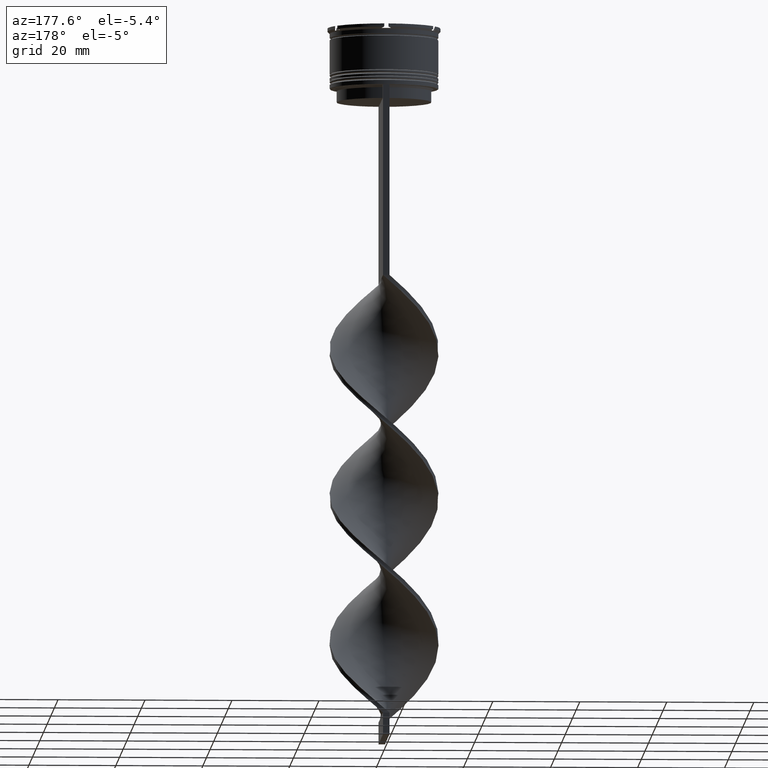
[diagram: clean part render]
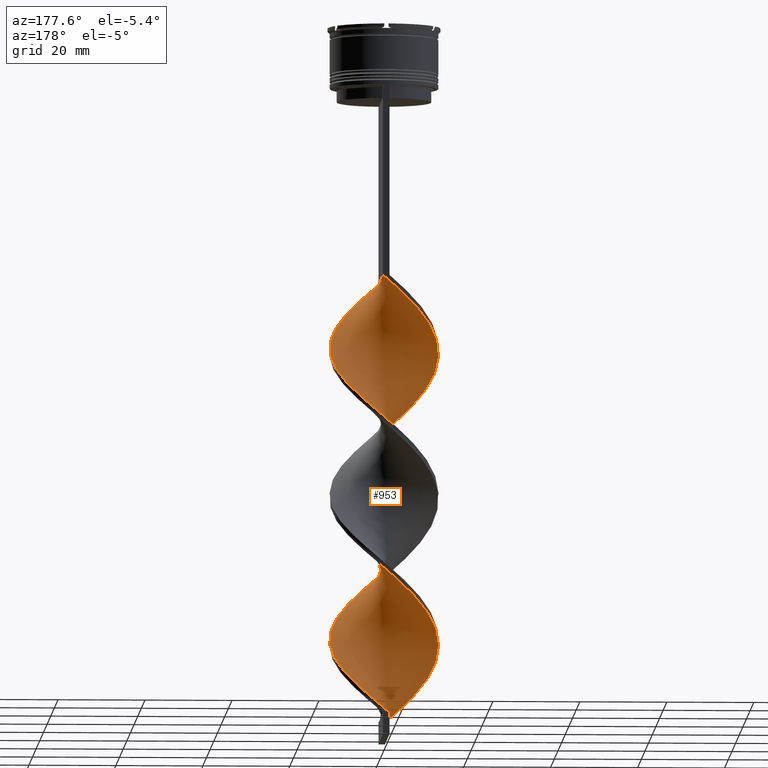
[diagram: same view with one face highlighted and labeled with its STEP entity id]
A machine part, auxiliary view. The second image highlights one B-rep face of the part: STEP entity #953.
In plain terms, the highlighted face is a freeform B-spline surface patch.
Its self-contained STEP definition (entity closure, byte-faithful):
#3 = CARTESIAN_POINT ( 'NONE',  ( -12.50992003955415832, -0.5607143693194613920, -143.2888888888889198 ) ) ;
#12 = CARTESIAN_POINT ( 'NONE',  ( 0.7500000000000002220, -12.50000000000000000, -125.3333333333333570 ) ) ;
#20 = CARTESIAN_POINT ( 'NONE',  ( 12.13740119476139867, -3.350863215071115953, -106.2555555555555742 ) ) ;
#35 = CARTESIAN_POINT ( 'NONE',  ( 2.063802940820956167, -12.42117182355074334, -126.4555555555555628 ) ) ;
#41 = CARTESIAN_POINT ( 'NONE',  ( 3.166767928522320474, 12.18672937812252322, -88.29999999999998295 ) ) ;
#45 = CARTESIAN_POINT ( 'NONE',  ( 7.954078399437128688, 9.671873490467486789, -118.6000000000000085 ) ) ;
#52 = CARTESIAN_POINT ( 'NONE',  ( 9.791158273236570508, -7.806773960377682009, -66.97777777777777430 ) ) ;
#58 = CARTESIAN_POINT ( 'NONE',  ( 9.725148873555948370, 7.997891686931350108, -148.8999999999999773 ) ) ;
#63 = CARTESIAN_POINT ( 'NONE',  ( -0.7499999999999986677, 12.50000000000000000, -159.0000000000000000 ) ) ;
#65 = CARTESIAN_POINT ( 'NONE',  ( -6.937523532635175627, -10.50788081788355832, -86.05555555555557135 ) ) ;
#75 = CARTESIAN_POINT ( 'NONE',  ( 5.631329961908789983, 11.26201202755619946, -153.3888888888889142 ) ) ;
#78 = CARTESIAN_POINT ( 'NONE',  ( -6.937523532635174739, -10.50788081788355832, -153.3888888888889142 ) ) ;
#97 = CARTESIAN_POINT ( 'NONE',  ( -6.740552907874707067, -10.55355136890619860, -118.6000000000000085 ) ) ;
#115 = CARTESIAN_POINT ( 'NONE',  ( 9.791158273236570508, -7.806773960377682009, -134.3111111111111313 ) ) ;
#172 = CARTESIAN_POINT ( 'NONE',  ( -11.17548622105502254, 5.801146418745307898, -137.6777777777777487 ) ) ;
#175 = ORIENTED_EDGE ( 'NONE', *, *, #1825, .F. ) ;
#194 = CARTESIAN_POINT ( 'NONE',  ( -5.769367131679456584, -11.11426573822565977, -154.5111111111111200 ) ) ;
#204 = CARTESIAN_POINT ( 'NONE',  ( 8.787462363698287149, 8.921491198593770378, -150.0222222222222115 ) ) ;
#205 = CARTESIAN_POINT ( 'NONE',  ( -10.45031754730548279, 6.899519052838331667, -69.22222222222222854 ) ) ;
#219 = CARTESIAN_POINT ( 'NONE',  ( 12.45098658456436169, 1.875559948311554370, -110.7444444444444542 ) ) ;
#245 = CARTESIAN_POINT ( 'NONE',  ( 6.740552907874702626, -10.55355136890619860, -98.40000000000001990 ) ) ;
#256 = CARTESIAN_POINT ( 'NONE',  ( 0.7500000000000002220, 12.50000000000000000, -58.00000000000000000 ) ) ;
#264 = CARTESIAN_POINT ( 'NONE',  ( 0.7500000000000002220, 12.50000000000000000, -125.3333333333333570 ) ) ;
#276 = CARTESIAN_POINT ( 'NONE',  ( 7.849775853840617934, -9.845090710256194200, -99.52222222222223991 ) ) ;
#284 = CARTESIAN_POINT ( 'NONE',  ( 10.61168328023406815, -6.777681757703950538, -68.10000000000002274 ) ) ;
#300 = CARTESIAN_POINT ( 'NONE',  ( -3.166767928522319142, 12.18672937812252322, -128.7000000000000171 ) ) ;
#310 = CARTESIAN_POINT ( 'NONE',  ( -7.954078399437124247, 9.671873490467490342, -98.40000000000001990 ) ) ;
#320 = CARTESIAN_POINT ( 'NONE',  ( -0.5638029408209555005, 12.57882817644925844, -126.4555555555555770 ) ) ;
#325 = CARTESIAN_POINT ( 'NONE',  ( -12.13740119476139867, 3.350863215071111512, -72.58888888888890278 ) ) ;
#330 = CARTESIAN_POINT ( 'NONE',  ( 7.849775853840625039, 9.845090710256194200, -83.81111111111111711 ) ) ;
#335 = CARTESIAN_POINT ( 'NONE',  ( -8.970633266239079973, -8.835866163051411704, -83.81111111111111711 ) ) ;
#346 = CARTESIAN_POINT ( 'NONE',  ( -7.849775853840630369, -9.845090710256190647, -117.4777777777777885 ) ) ;
#355 = CARTESIAN_POINT ( 'NONE',  ( -10.61168328023406637, -6.777681757703948762, -81.56666666666666288 ) ) ;
#371 = CARTESIAN_POINT ( 'NONE',  ( -2.063802940820951726, 12.42117182355074689, -92.78888888888889142 ) ) ;
#377 = CARTESIAN_POINT ( 'NONE',  ( 12.11996919947063134, -3.149420042465478353, -138.8000000000000114 ) ) ;
#383 = CARTESIAN_POINT ( 'NONE',  ( -12.35312734465267681, 2.052497212371875879, -73.71111111111112280 ) ) ;
#388 = CARTESIAN_POINT ( 'NONE',  ( 4.601210730723737541, -11.72065065856775945, -128.6999999999999886 ) ) ;
#392 = CARTESIAN_POINT ( 'NONE',  ( -10.61168328023406460, 6.777681757703952314, -101.7666666666666515 ) ) ;
#410 = CARTESIAN_POINT ( 'NONE',  ( -4.601210730723734876, 11.72065065856775945, -95.03333333333331723 ) ) ;
#434 = CARTESIAN_POINT ( 'NONE',  ( -10.45031754730548812, -6.899519052838321009, -114.1111111111111285 ) ) ;
#446 = CARTESIAN_POINT ( 'NONE',  ( 5.769367131679453031, -11.11426573822566155, -129.8222222222222229 ) ) ;
#450 = CARTESIAN_POINT ( 'NONE',  ( -11.17548622105502254, -5.801146418745300792, -112.9888888888888943 ) ) ;
#471 = CARTESIAN_POINT ( 'NONE',  ( -0.7500000000000017764, -12.50000000000000000, -159.0000000000000000 ) ) ;
#483 = CARTESIAN_POINT ( 'NONE',  ( -4.399048945215550788, 11.72437070283936222, -129.8222222222222229 ) ) ;
#490 = VERTEX_POINT ( 'NONE', #1727 ) ;
#506 = CARTESIAN_POINT ( 'NONE',  ( 10.61168328023406993, 6.777681757703947873, -115.2333333333333343 ) ) ;
#518 = CARTESIAN_POINT ( 'NONE',  ( -9.725148873555948370, 7.997891686931351884, -68.10000000000000853 ) ) ;
#526 = CARTESIAN_POINT ( 'NONE',  ( -5.631329961908784654, 11.26201202755620123, -130.9444444444444287 ) ) ;
#547 = CARTESIAN_POINT ( 'NONE',  ( 3.166767928522317810, -12.18672937812252677, -95.03333333333331723 ) ) ;
#575 = CARTESIAN_POINT ( 'NONE',  ( 6.937523532635176515, 10.50788081788355832, -119.7222222222222143 ) ) ;
#580 = CARTESIAN_POINT ( 'NONE',  ( 12.56885349454395495, 0.7541312096726368042, -74.83333333333332860 ) ) ;
#585 = CARTESIAN_POINT ( 'NONE',  ( 8.787462363698281820, -8.921491198593777483, -100.6444444444444599 ) ) ;
#601 = CARTESIAN_POINT ( 'NONE',  ( 8.787462363698287149, 8.921491198593770378, -82.68888888888889710 ) ) ;
#604 = CARTESIAN_POINT ( 'NONE',  ( -10.45031754730548279, 6.899519052838331667, -136.5555555555555713 ) ) ;
#608 = CARTESIAN_POINT ( 'NONE',  ( -7.849775853840620599, 9.845090710256195976, -65.85555555555555429 ) ) ;
#613 = CARTESIAN_POINT ( 'NONE',  ( -9.725148873555948370, -7.997891686931350996, -115.2333333333333343 ) ) ;
#621 = CARTESIAN_POINT ( 'NONE',  ( 8.970633266239079973, -8.835866163051415256, -65.85555555555555429 ) ) ;
#628 = CARTESIAN_POINT ( 'NONE',  ( 9.725148873555946594, -7.997891686931353661, -101.7666666666666515 ) ) ;
#632 = CARTESIAN_POINT ( 'NONE',  ( -11.17548622105502254, 5.801146418745307898, -70.34444444444443434 ) ) ;
#638 = CARTESIAN_POINT ( 'NONE',  ( 9.725148873555946594, 7.997891686931350996, -81.56666666666664867 ) ) ;
#648 = CARTESIAN_POINT ( 'NONE',  ( -9.725148873555948370, 7.997891686931351884, -135.4333333333333371 ) ) ;
#652 = CARTESIAN_POINT ( 'NONE',  ( -3.166767928522319142, 12.18672937812252499, -61.36666666666666003 ) ) ;
#657 =( BOUNDED_CURVE ( )  B_SPLINE_CURVE ( 2, ( #2508, #3790, #1937, #4145, #4077, #1210, #958, #621, #2479, #3763, #1547, #2171, #916, #3452, #4125, #580, #2190, #1855, #3136, #2821, #3809, #3473, #601, #1876, #1259, #2527, #2209, #41, #1042, #2907, #720, #1324, #1982, #410, #2044, #1690, #2316, #1714, #679, #392, #2942, #3243, #3325, #998, #2001, #3265, #2019, #2925, #3282, #450, #434, #3616, #2965, #1059, #97, #1674, #1379, #2597, #3871, #3301, #3602, #2653, #736, #2986, #3931, #2349, #3557, #1017, #115, #2273, #1959, #2332, #377, #1654, #1077, #1400, #1340, #3639, #2673, #3947, #760, #58, #2613, #3891, #2294, #75, #3581, #703, #1356, #2634, #3913 ),
 .UNSPECIFIED., .F., .T. ) 
 B_SPLINE_CURVE_WITH_KNOTS ( ( 3, 2, 2, 2, 2, 2, 2, 2, 2, 2, 2, 2, 2, 2, 2, 2, 2, 2, 2, 2, 2, 2, 2, 2, 2, 2, 2, 2, 2, 2, 2, 2, 2, 2, 2, 2, 2, 2, 2, 2, 2, 2, 2, 2, 2, 3 ),
 ( 0.000000000000000000, 0.01666666666666666644, 0.03333333333333333287, 0.05000000000000000971, 0.06666666666666666574, 0.08333333333333332871, 0.1000000000000000194, 0.1166666666666666546, 0.1333333333333333315, 0.1499999999999999944, 0.1666666666666666574, 0.1833333333333333204, 0.2000000000000000389, 0.2166666666666666741, 0.2333333333333333093, 0.2500000000000000000, 0.2666666666666666630, 0.2833333333333333259, 0.2999999999999999889, 0.3166666666666666519, 0.3333333333333333148, 0.3499999999999999223, 0.3666666666666666408, 0.3833333333333333592, 0.4000000000000000777, 0.4166666666666666852, 0.4333333333333333481, 0.4500000000000000111, 0.4666666666666666186, 0.4833333333333333370, 0.5000000000000000000, 0.5166666666666667185, 0.5333333333333333259, 0.5500000000000000444, 0.5666666666666666519, 0.5833333333333333703, 0.5999999999999999778, 0.6166666666666666963, 0.6333333333333333037, 0.6500000000000000222, 0.6666666666666666297, 0.6833333333333332371, 0.6999999999999998446, 0.7166666666666666741, 0.7333333333333332815, 0.7500000000000000000 ),
 .UNSPECIFIED. ) 
 CURVE ( )  GEOMETRIC_REPRESENTATION_ITEM ( )  RATIONAL_B_SPLINE_CURVE ( ( 1.000000000000000000, 0.9945218953682732899, 1.000000000000000000, 0.9945218953682732899, 1.000000000000000000, 0.9945218953682732899, 1.000000000000000000, 0.9945218953682732899, 1.000000000000000000, 0.9945218953682732899, 1.000000000000000000, 0.9945218953682732899, 1.000000000000000000, 0.9945218953682732899, 1.000000000000000000, 0.9945218953682732899, 1.000000000000000000, 0.9945218953682732899, 1.000000000000000000, 0.9945218953682732899, 1.000000000000000000, 0.9945218953682732899, 1.000000000000000000, 0.9945218953682732899, 1.000000000000000000, 0.9945218953682732899, 1.000000000000000000, 0.9945218953682732899, 1.000000000000000000, 0.9945218953682732899, 1.000000000000000000, 0.9945218953682732899, 1.000000000000000000, 0.9945218953682732899, 1.000000000000000000, 0.9945218953682732899, 1.000000000000000000, 0.9945218953682732899, 1.000000000000000000, 0.9945218953682732899, 1.000000000000000000, 0.9945218953682732899, 1.000000000000000000, 0.9945218953682732899, 1.000000000000000000, 0.9945218953682732899, 1.000000000000000000, 0.9945218953682732899, 1.000000000000000000, 0.9945218953682732899, 1.000000000000000000, 0.9945218953682732899, 1.000000000000000000, 0.9945218953682732899, 1.000000000000000000, 0.9945218953682732899, 1.000000000000000000, 0.9945218953682732899, 1.000000000000000000, 0.9945218953682732899, 1.000000000000000000, 0.9945218953682732899, 1.000000000000000000, 0.9945218953682732899, 1.000000000000000000, 0.9945218953682732899, 1.000000000000000000, 0.9945218953682732899, 1.000000000000000000, 0.9945218953682732899, 1.000000000000000000, 0.9945218953682732899, 1.000000000000000000, 0.9945218953682732899, 1.000000000000000000, 0.9945218953682732899, 1.000000000000000000, 0.9945218953682732899, 1.000000000000000000, 0.9945218953682732899, 1.000000000000000000, 0.9945218953682732899, 1.000000000000000000, 0.9945218953682732899, 1.000000000000000000, 0.9945218953682732899, 1.000000000000000000, 0.9945218953682732899, 1.000000000000000000, 0.9945218953682732899, 1.000000000000000000 ) ) 
 REPRESENTATION_ITEM ( '' )  );
#658 = CARTESIAN_POINT ( 'NONE',  ( 12.56885349454395495, 0.7541312096726368042, -74.83333333333334281 ) ) ;
#664 = CARTESIAN_POINT ( 'NONE',  ( -12.11996919947063311, -3.149420042465476577, -145.5333333333333599 ) ) ;
#668 = EDGE_LOOP ( 'NONE', ( #3142, #1226, #3940, #175 ) ) ;
#671 = LINE ( 'NONE', #2538, #1956 ) ;
#675 = CARTESIAN_POINT ( 'NONE',  ( 4.601210730723737541, -11.72065065856775945, -61.36666666666666003 ) ) ;
#679 = CARTESIAN_POINT ( 'NONE',  ( -9.791158273236570508, 7.806773960377685562, -100.6444444444444599 ) ) ;
#691 = CARTESIAN_POINT ( 'NONE',  ( -7.954078399437126912, -9.671873490467486789, -84.93333333333333712 ) ) ;
#697 = CARTESIAN_POINT ( 'NONE',  ( 2.063802940820956167, -12.42117182355074334, -59.12222222222222712 ) ) ;
#703 = CARTESIAN_POINT ( 'NONE',  ( 3.166767928522320474, 12.18672937812252322, -155.6333333333333542 ) ) ;
#714 = CARTESIAN_POINT ( 'NONE',  ( 9.791158273236570508, -7.806773960377682009, -134.3111111111111313 ) ) ;
#720 = CARTESIAN_POINT ( 'NONE',  ( -0.7499999999999986677, 12.50000000000000000, -91.66666666666667140 ) ) ;
#736 = CARTESIAN_POINT ( 'NONE',  ( 3.332506835772345966, -12.07091124105925317, -127.5777777777777828 ) ) ;
#753 = CARTESIAN_POINT ( 'NONE',  ( 1.865285434671642317, 12.38277877728589083, -156.7555555555555600 ) ) ;
#760 = CARTESIAN_POINT ( 'NONE',  ( 10.45031754730548457, 6.899519052838327227, -147.7777777777777715 ) ) ;
#766 = CARTESIAN_POINT ( 'NONE',  ( -9.791158273236575837, -7.806773960377678456, -150.0222222222222115 ) ) ;
#800 = CARTESIAN_POINT ( 'NONE',  ( 12.11996919947063311, 3.149420042465475245, -111.8666666666666742 ) ) ;
#821 = CARTESIAN_POINT ( 'NONE',  ( -5.769367131679456584, -11.11426573822565977, -87.17777777777779136 ) ) ;
#834 = CARTESIAN_POINT ( 'NONE',  ( 11.65644370790820972, 4.576004816908207928, -145.5333333333333599 ) ) ;
#843 = CARTESIAN_POINT ( 'NONE',  ( -4.601210730723739317, -11.72065065856775945, -155.6333333333333258 ) ) ;
#862 = CARTESIAN_POINT ( 'NONE',  ( 7.954078399437128688, 9.671873490467486789, -118.6000000000000085 ) ) ;
#883 = CARTESIAN_POINT ( 'NONE',  ( 10.45031754730548101, -6.899519052838334332, -102.8888888888888857 ) ) ;
#916 = CARTESIAN_POINT ( 'NONE',  ( 12.11996919947063134, -3.149420042465478353, -71.46666666666668277 ) ) ;
#920 = CARTESIAN_POINT ( 'NONE',  ( 5.631329961908781989, -11.26201202755620479, -97.27777777777779988 ) ) ;
#925 = CARTESIAN_POINT ( 'NONE',  ( -6.740552907874703514, 10.55355136890620038, -64.73333333333333428 ) ) ;
#930 = CARTESIAN_POINT ( 'NONE',  ( 10.45031754730548457, 6.899519052838327227, -80.44444444444445708 ) ) ;
#937 = CARTESIAN_POINT ( 'NONE',  ( -0.7500000000000017764, -12.50000000000000000, -159.0000000000000000 ) ) ;
#941 = CARTESIAN_POINT ( 'NONE',  ( -7.849775853840621487, 9.845090710256194200, -133.1888888888889255 ) ) ;
#944 = CARTESIAN_POINT ( 'NONE',  ( -0.5638029408209555005, 12.57882817644926021, -59.12222222222222712 ) ) ;
#950 = CARTESIAN_POINT ( 'NONE',  ( -8.970633266239076420, 8.835866163051417033, -99.52222222222223991 ) ) ;
#953 = ADVANCED_FACE ( 'NONE', ( #4113 ), #3407, .T. ) ;
#958 = CARTESIAN_POINT ( 'NONE',  ( 7.954078399437126023, -9.671873490467488566, -64.73333333333333428 ) ) ;
#966 = CARTESIAN_POINT ( 'NONE',  ( 12.50992003955415832, 0.5607143693194570622, -109.6222222222222342 ) ) ;
#977 = CARTESIAN_POINT ( 'NONE',  ( 12.11996919947063134, -3.149420042465478353, -71.46666666666668277 ) ) ;
#986 = CARTESIAN_POINT ( 'NONE',  ( 11.65644370790820794, -4.576004816908210593, -105.1333333333333400 ) ) ;
#994 = CARTESIAN_POINT ( 'NONE',  ( 8.970633266239079973, -8.835866163051415256, -65.85555555555555429 ) ) ;
#998 = CARTESIAN_POINT ( 'NONE',  ( -12.45098658456436169, 1.875559948311569913, -106.2555555555555742 ) ) ;
#1002 = CARTESIAN_POINT ( 'NONE',  ( 11.20031754730548812, 5.600480947161662115, -114.1111111111111285 ) ) ;
#1007 = CARTESIAN_POINT ( 'NONE',  ( -9.791158273236575837, -7.806773960377678456, -82.68888888888889710 ) ) ;
#1012 = CARTESIAN_POINT ( 'NONE',  ( -5.769367131679449479, 11.11426573822566333, -96.15555555555556566 ) ) ;
#1017 = CARTESIAN_POINT ( 'NONE',  ( 8.970633266239079973, -8.835866163051415256, -133.1888888888889255 ) ) ;
#1036 = CARTESIAN_POINT ( 'NONE',  ( 10.45031754730548457, 6.899519052838327227, -147.7777777777777715 ) ) ;
#1042 = CARTESIAN_POINT ( 'NONE',  ( 1.865285434671642317, 12.38277877728589083, -89.42222222222223138 ) ) ;
#1059 = CARTESIAN_POINT ( 'NONE',  ( -7.849775853840630369, -9.845090710256188871, -117.4777777777777885 ) ) ;
#1071 = CARTESIAN_POINT ( 'NONE',  ( 6.740552907874705291, 10.55355136890619860, -152.2666666666666799 ) ) ;
#1077 = CARTESIAN_POINT ( 'NONE',  ( 12.50992003955415655, -0.5607143693194658329, -141.0444444444444514 ) ) ;
#1083 = CARTESIAN_POINT ( 'NONE',  ( -0.7499999999999996669, 4.166666666666667851, -159.0000000000000000 ) ) ;
#1106 = CARTESIAN_POINT ( 'NONE',  ( 0.7500000000000002220, -12.50000000000000000, -58.00000000000000000 ) ) ;
#1127 = CARTESIAN_POINT ( 'NONE',  ( -3.166767928522319142, 12.18672937812252322, -61.36666666666666003 ) ) ;
#1137 = CARTESIAN_POINT ( 'NONE',  ( -11.20031754730548457, -5.600480947161668333, -147.7777777777777715 ) ) ;
#1147 = CARTESIAN_POINT ( 'NONE',  ( 12.13740119476140045, 3.350863215071107515, -144.4111111111111541 ) ) ;
#1161 = CARTESIAN_POINT ( 'NONE',  ( -12.50992003955415832, -0.5607143693194613920, -143.2888888888889198 ) ) ;
#1175 = CARTESIAN_POINT ( 'NONE',  ( 10.61168328023406815, -6.777681757703950538, -135.4333333333333371 ) ) ;
#1185 = CARTESIAN_POINT ( 'NONE',  ( -7.849775853840620599, 9.845090710256195976, -133.1888888888889255 ) ) ;
#1203 = CARTESIAN_POINT ( 'NONE',  ( 3.332506835772352627, 12.07091124105925140, -123.0888888888888886 ) ) ;
#1210 = CARTESIAN_POINT ( 'NONE',  ( 6.937523532635171186, -10.50788081788356187, -63.61111111111112137 ) ) ;
#1217 = CARTESIAN_POINT ( 'NONE',  ( -11.17548622105502076, 5.801146418745308786, -70.34444444444444855 ) ) ;
#1226 = ORIENTED_EDGE ( 'NONE', *, *, #2278, .T. ) ;
#1244 = CARTESIAN_POINT ( 'NONE',  ( 0.7500000000000002220, 12.50000000000000000, -125.3333333333333570 ) ) ;
#1249 = CARTESIAN_POINT ( 'NONE',  ( -1.865285434671636988, 12.38277877728589260, -60.24444444444444713 ) ) ;
#1254 = CARTESIAN_POINT ( 'NONE',  ( -12.35312734465267859, -2.052497212371867885, -109.6222222222222342 ) ) ;
#1259 = CARTESIAN_POINT ( 'NONE',  ( 6.740552907874705291, 10.55355136890619860, -84.93333333333333712 ) ) ;
#1262 = CARTESIAN_POINT ( 'NONE',  ( 12.56885349454395495, -0.7541312096726398018, -108.5000000000000000 ) ) ;
#1272 = VERTEX_POINT ( 'NONE', #1106 ) ;
#1273 = CARTESIAN_POINT ( 'NONE',  ( -3.166767928522322251, -12.18672937812252499, -121.9666666666666544 ) ) ;
#1281 = CARTESIAN_POINT ( 'NONE',  ( -11.78895181437690276, -4.423280136619389680, -79.32222222222222285 ) ) ;
#1283 = VERTEX_POINT ( 'NONE', #2717 ) ;
#1290 = CARTESIAN_POINT ( 'NONE',  ( 11.20031754730548279, -5.600480947161672773, -69.22222222222222854 ) ) ;
#1309 = CARTESIAN_POINT ( 'NONE',  ( 5.769367131679463689, 11.11426573822565622, -120.8444444444444485 ) ) ;
#1320 = CARTESIAN_POINT ( 'NONE',  ( 3.332506835772345966, -12.07091124105925317, -127.5777777777777828 ) ) ;
#1324 = CARTESIAN_POINT ( 'NONE',  ( -2.063802940820951726, 12.42117182355074689, -92.78888888888889142 ) ) ;
#1328 = CARTESIAN_POINT ( 'NONE',  ( -11.20031754730548457, -5.600480947161668333, -147.7777777777777715 ) ) ;
#1336 = CARTESIAN_POINT ( 'NONE',  ( 5.769367131679453031, -11.11426573822566155, -62.48888888888889426 ) ) ;
#1340 = CARTESIAN_POINT ( 'NONE',  ( 12.35312734465267859, 2.052497212371872326, -143.2888888888889198 ) ) ;
#1352 = CARTESIAN_POINT ( 'NONE',  ( 7.849775853840625039, 9.845090710256194200, -151.1444444444444457 ) ) ;
#1356 = CARTESIAN_POINT ( 'NONE',  ( 1.865285434671642317, 12.38277877728589083, -156.7555555555555600 ) ) ;
#1361 = CARTESIAN_POINT ( 'NONE',  ( -0.7500000000000017764, -12.50000000000000000, -159.0000000000000000 ) ) ;
#1375 = CARTESIAN_POINT ( 'NONE',  ( 12.45098658456436169, -1.875559948311565917, -139.9222222222222172 ) ) ;
#1379 = CARTESIAN_POINT ( 'NONE',  ( -4.399048945215561446, -11.72437070283935689, -120.8444444444444485 ) ) ;
#1400 = CARTESIAN_POINT ( 'NONE',  ( 12.56885349454395495, 0.7541312096726368042, -142.1666666666666856 ) ) ;
#1452 = CARTESIAN_POINT ( 'NONE',  ( -2.063802940820959275, -12.42117182355074334, -90.54444444444445139 ) ) ;
#1473 = CARTESIAN_POINT ( 'NONE',  ( 5.631329961908781989, -11.26201202755620479, -97.27777777777778567 ) ) ;
#1483 = CARTESIAN_POINT ( 'NONE',  ( -12.13740119476139867, 3.350863215071111512, -72.58888888888890278 ) ) ;
#1499 = CARTESIAN_POINT ( 'NONE',  ( 11.65644370790820794, -4.576004816908210593, -105.1333333333333400 ) ) ;
#1513 = CARTESIAN_POINT ( 'NONE',  ( -12.35312734465267681, 2.052497212371875879, -73.71111111111112280 ) ) ;
#1522 = CARTESIAN_POINT ( 'NONE',  ( -1.865285434671636988, 12.38277877728589260, -127.5777777777777828 ) ) ;
#1534 = CARTESIAN_POINT ( 'NONE',  ( -8.787462363698281820, 8.921491198593773930, -66.97777777777777430 ) ) ;
#1541 = CARTESIAN_POINT ( 'NONE',  ( 4.399048945215547235, -11.72437070283936400, -96.15555555555556566 ) ) ;
#1547 = CARTESIAN_POINT ( 'NONE',  ( 11.20031754730548279, -5.600480947161672773, -69.22222222222222854 ) ) ;
#1553 = CARTESIAN_POINT ( 'NONE',  ( 10.61168328023406815, 6.777681757703947873, -115.2333333333333343 ) ) ;
#1562 = CARTESIAN_POINT ( 'NONE',  ( 12.45098658456436169, -1.875559948311565917, -72.58888888888890278 ) ) ;
#1578 = CARTESIAN_POINT ( 'NONE',  ( -11.65644370790820794, 4.576004816908208817, -138.8000000000000114 ) ) ;
#1581 = CARTESIAN_POINT ( 'NONE',  ( -8.787462363698281820, 8.921491198593773930, -66.97777777777777430 ) ) ;
#1586 = CARTESIAN_POINT ( 'NONE',  ( -4.399048945215561446, -11.72437070283935689, -120.8444444444444485 ) ) ;
#1594 = CARTESIAN_POINT ( 'NONE',  ( 2.063802940820966825, 12.42117182355074334, -124.2111111111111370 ) ) ;
#1604 = CARTESIAN_POINT ( 'NONE',  ( -12.45098658456436169, 1.875559948311569691, -106.2555555555555742 ) ) ;
#1612 = CARTESIAN_POINT ( 'NONE',  ( 0.5638029408209503934, -12.57882817644926199, -92.78888888888889142 ) ) ;
#1622 = CARTESIAN_POINT ( 'NONE',  ( 1.865285434671642317, 12.38277877728589083, -89.42222222222223138 ) ) ;
#1637 = CARTESIAN_POINT ( 'NONE',  ( 1.865285434671633880, -12.38277877728589260, -93.91111111111111143 ) ) ;
#1646 = CARTESIAN_POINT ( 'NONE',  ( 0.7500000000000002220, -12.50000000000000000, -58.00000000000000000 ) ) ;
#1654 = CARTESIAN_POINT ( 'NONE',  ( 12.45098658456436169, -1.875559948311565694, -139.9222222222222172 ) ) ;
#1661 = CARTESIAN_POINT ( 'NONE',  ( -11.20031754730548457, -5.600480947161668333, -80.44444444444445708 ) ) ;
#1668 = CARTESIAN_POINT ( 'NONE',  ( 9.725148873555946594, 7.997891686931350996, -148.8999999999999488 ) ) ;
#1674 = CARTESIAN_POINT ( 'NONE',  ( -5.631329961908790871, -11.26201202755619946, -119.7222222222222143 ) ) ;
#1690 = CARTESIAN_POINT ( 'NONE',  ( -6.937523532635168522, 10.50788081788356365, -97.27777777777779988 ) ) ;
#1696 = CARTESIAN_POINT ( 'NONE',  ( -8.970633266239079973, -8.835866163051411704, -151.1444444444444457 ) ) ;
#1714 = CARTESIAN_POINT ( 'NONE',  ( -8.970633266239076420, 8.835866163051417033, -99.52222222222223991 ) ) ;
#1727 = CARTESIAN_POINT ( 'NONE',  ( -0.7499999999999986677, 12.50000000000000000, -159.0000000000000000 ) ) ;
#1746 = EDGE_CURVE ( 'NONE', #1272, #1283, #671, .T. ) ;
#1752 = CARTESIAN_POINT ( 'NONE',  ( -0.7500000000000007772, -4.166666666666667851, -159.0000000000000000 ) ) ;
#1767 = CARTESIAN_POINT ( 'NONE',  ( -6.740552907874703514, 10.55355136890620038, -132.0666666666666629 ) ) ;
#1783 = CARTESIAN_POINT ( 'NONE',  ( -6.937523532635175627, -10.50788081788355832, -153.3888888888889142 ) ) ;
#1793 = CARTESIAN_POINT ( 'NONE',  ( 11.78895181437690276, -4.423280136619393232, -137.6777777777777487 ) ) ;
#1801 = CARTESIAN_POINT ( 'NONE',  ( -12.13740119476139867, 3.350863215071111512, -139.9222222222222172 ) ) ;
#1825 = EDGE_CURVE ( 'NONE', #1283, #2248, #2663, .T. ) ;
#1827 = CARTESIAN_POINT ( 'NONE',  ( -8.970633266239079973, -8.835866163051411704, -151.1444444444444457 ) ) ;
#1840 = CARTESIAN_POINT ( 'NONE',  ( -1.865285434671636988, 12.38277877728589260, -60.24444444444444713 ) ) ;
#1849 = CARTESIAN_POINT ( 'NONE',  ( 4.601210730723740205, 11.72065065856775945, -121.9666666666666544 ) ) ;
#1855 = CARTESIAN_POINT ( 'NONE',  ( 12.13740119476140045, 3.350863215071107515, -77.07777777777778283 ) ) ;
#1859 = CARTESIAN_POINT ( 'NONE',  ( -11.20031754730548457, -5.600480947161668333, -80.44444444444445708 ) ) ;
#1876 = CARTESIAN_POINT ( 'NONE',  ( 7.849775853840625039, 9.845090710256192423, -83.81111111111111711 ) ) ;
#1879 = CARTESIAN_POINT ( 'NONE',  ( -7.954078399437126912, -9.671873490467486789, -84.93333333333333712 ) ) ;
#1889 = CARTESIAN_POINT ( 'NONE',  ( -5.631329961908790871, -11.26201202755619768, -119.7222222222222143 ) ) ;
#1905 = CARTESIAN_POINT ( 'NONE',  ( 10.45031754730548101, -6.899519052838334332, -102.8888888888888857 ) ) ;
#1914 = CARTESIAN_POINT ( 'NONE',  ( -0.7500000000000017764, -12.50000000000000000, -159.0000000000000000 ) ) ;
#1924 = CARTESIAN_POINT ( 'NONE',  ( -11.17548622105502076, 5.801146418745308786, -137.6777777777777487 ) ) ;
#1933 = CARTESIAN_POINT ( 'NONE',  ( 12.13740119476140045, 3.350863215071107515, -77.07777777777778283 ) ) ;
#1937 = CARTESIAN_POINT ( 'NONE',  ( 3.332506835772345966, -12.07091124105925317, -60.24444444444444713 ) ) ;
#1941 = CARTESIAN_POINT ( 'NONE',  ( 4.601210730723740205, 11.72065065856775767, -121.9666666666666544 ) ) ;
#1952 = CARTESIAN_POINT ( 'NONE',  ( 11.17548622105502254, 5.801146418745304345, -79.32222222222222285 ) ) ;
#1956 = VECTOR ( 'NONE', #3818, 1000.000000000000000 ) ;
#1959 = CARTESIAN_POINT ( 'NONE',  ( 11.20031754730548279, -5.600480947161672773, -136.5555555555555713 ) ) ;
#1969 = CARTESIAN_POINT ( 'NONE',  ( -11.78895181437690276, -4.423280136619389680, -79.32222222222222285 ) ) ;
#1982 = CARTESIAN_POINT ( 'NONE',  ( -3.332506835772342857, 12.07091124105925317, -93.91111111111111143 ) ) ;
#2001 = CARTESIAN_POINT ( 'NONE',  ( -12.50992003955415832, 0.5607143693194728273, -107.3777777777777942 ) ) ;
#2019 = CARTESIAN_POINT ( 'NONE',  ( -12.35312734465267859, -2.052497212371867885, -109.6222222222222342 ) ) ;
#2044 = CARTESIAN_POINT ( 'NONE',  ( -5.769367131679449479, 11.11426573822566333, -96.15555555555556566 ) ) ;
#2047 = CARTESIAN_POINT ( 'NONE',  ( -2.063802940820959275, -12.42117182355074334, -157.8777777777777942 ) ) ;
#2077 = CARTESIAN_POINT ( 'NONE',  ( -0.5638029408209555005, 12.57882817644926021, -126.4555555555555628 ) ) ;
#2101 = CARTESIAN_POINT ( 'NONE',  ( -9.791158273236575837, -7.806773960377678456, -150.0222222222222115 ) ) ;
#2111 = CARTESIAN_POINT ( 'NONE',  ( 4.399048945215554340, 11.72437070283936045, -154.5111111111111200 ) ) ;
#2119 = CARTESIAN_POINT ( 'NONE',  ( -11.78895181437690276, -4.423280136619389680, -146.6555555555555657 ) ) ;
#2139 = CARTESIAN_POINT ( 'NONE',  ( 12.50992003955415832, 0.5607143693194570622, -109.6222222222222342 ) ) ;
#2161 = CARTESIAN_POINT ( 'NONE',  ( -3.332506835772350851, -12.07091124105925140, -89.42222222222223138 ) ) ;
#2171 = CARTESIAN_POINT ( 'NONE',  ( 11.78895181437690276, -4.423280136619393232, -70.34444444444444855 ) ) ;
#2190 = CARTESIAN_POINT ( 'NONE',  ( 12.35312734465267859, 2.052497212371872326, -75.95555555555554861 ) ) ;
#2194 = CARTESIAN_POINT ( 'NONE',  ( 11.17548622105501721, -5.801146418745314115, -104.0111111111111057 ) ) ;
#2202 = CARTESIAN_POINT ( 'NONE',  ( 0.5638029408209590532, 12.57882817644926021, -90.54444444444445139 ) ) ;
#2209 = CARTESIAN_POINT ( 'NONE',  ( 4.399048945215554340, 11.72437070283936045, -87.17777777777779136 ) ) ;
#2212 = CARTESIAN_POINT ( 'NONE',  ( -9.791158273236575837, -7.806773960377678456, -82.68888888888889710 ) ) ;
#2215 = CARTESIAN_POINT ( 'NONE',  ( -10.45031754730548279, 6.899519052838331667, -69.22222222222222854 ) ) ;
#2223 = CARTESIAN_POINT ( 'NONE',  ( 12.50992003955415655, -0.5607143693194658329, -73.71111111111112280 ) ) ;
#2239 = CARTESIAN_POINT ( 'NONE',  ( 12.11996919947063311, 3.149420042465475245, -111.8666666666666742 ) ) ;
#2248 = VERTEX_POINT ( 'NONE', #937 ) ;
#2249 = CARTESIAN_POINT ( 'NONE',  ( 4.399048945215554340, 11.72437070283936045, -87.17777777777779136 ) ) ;
#2258 = CARTESIAN_POINT ( 'NONE',  ( 4.399048945215547235, -11.72437070283936400, -96.15555555555556566 ) ) ;
#2267 = CARTESIAN_POINT ( 'NONE',  ( -12.56885349454395495, -0.7541312096726353609, -108.5000000000000000 ) ) ;
#2273 = CARTESIAN_POINT ( 'NONE',  ( 10.61168328023406637, -6.777681757703950538, -135.4333333333333371 ) ) ;
#2278 = EDGE_CURVE ( 'NONE', #1272, #490, #657, .T. ) ;
#2280 = CARTESIAN_POINT ( 'NONE',  ( -12.50992003955415832, -0.5607143693194613920, -75.95555555555554861 ) ) ;
#2287 = CARTESIAN_POINT ( 'NONE',  ( 7.954078399437126023, -9.671873490467488566, -64.73333333333333428 ) ) ;
#2294 = CARTESIAN_POINT ( 'NONE',  ( 6.740552907874705291, 10.55355136890619860, -152.2666666666666799 ) ) ;
#2299 = CARTESIAN_POINT ( 'NONE',  ( -3.332506835772350851, -12.07091124105925140, -156.7555555555555600 ) ) ;
#2310 = CARTESIAN_POINT ( 'NONE',  ( 7.954078399437126023, -9.671873490467488566, -132.0666666666666629 ) ) ;
#2316 = CARTESIAN_POINT ( 'NONE',  ( -7.954078399437124247, 9.671873490467490342, -98.40000000000001990 ) ) ;
#2332 = CARTESIAN_POINT ( 'NONE',  ( 11.78895181437690276, -4.423280136619393232, -137.6777777777777487 ) ) ;
#2349 = CARTESIAN_POINT ( 'NONE',  ( 6.937523532635171186, -10.50788081788356187, -130.9444444444444571 ) ) ;
#2391 = CARTESIAN_POINT ( 'NONE',  ( 1.865285434671633880, -12.38277877728589260, -93.91111111111111143 ) ) ;
#2400 = CARTESIAN_POINT ( 'NONE',  ( -4.399048945215550788, 11.72437070283936222, -62.48888888888889426 ) ) ;
#2408 = CARTESIAN_POINT ( 'NONE',  ( 7.849775853840617046, -9.845090710256195976, -99.52222222222223991 ) ) ;
#2423 = CARTESIAN_POINT ( 'NONE',  ( -6.740552907874703514, 10.55355136890620038, -64.73333333333333428 ) ) ;
#2436 = CARTESIAN_POINT ( 'NONE',  ( -12.45098658456435992, -1.875559948311561920, -144.4111111111111541 ) ) ;
#2455 = CARTESIAN_POINT ( 'NONE',  ( -10.45031754730548279, 6.899519052838331667, -136.5555555555555713 ) ) ;
#2474 = CARTESIAN_POINT ( 'NONE',  ( -0.7500000000000017764, -12.50000000000000000, -91.66666666666667140 ) ) ;
#2479 = CARTESIAN_POINT ( 'NONE',  ( 9.791158273236570508, -7.806773960377682009, -66.97777777777777430 ) ) ;
#2484 = CARTESIAN_POINT ( 'NONE',  ( -11.65644370790820794, 4.576004816908208817, -71.46666666666668277 ) ) ;
#2508 = CARTESIAN_POINT ( 'NONE',  ( 0.7500000000000002220, -12.50000000000000000, -58.00000000000000000 ) ) ;
#2512 = CARTESIAN_POINT ( 'NONE',  ( 6.740552907874702626, -10.55355136890619860, -98.40000000000001990 ) ) ;
#2522 = CARTESIAN_POINT ( 'NONE',  ( -11.65644370790820972, -4.576004816908206152, -111.8666666666666742 ) ) ;
#2527 = CARTESIAN_POINT ( 'NONE',  ( 5.631329961908789983, 11.26201202755619946, -86.05555555555557135 ) ) ;
#2531 = CARTESIAN_POINT ( 'NONE',  ( -8.787462363698281820, 8.921491198593773930, -134.3111111111111313 ) ) ;
#2538 = CARTESIAN_POINT ( 'NONE',  ( 0.7500000000000002220, -12.50000000000000000, -58.00000000000000000 ) ) ;
#2541 = CARTESIAN_POINT ( 'NONE',  ( -1.865285434671644094, -12.38277877728589083, -123.0888888888888886 ) ) ;
#2555 = CARTESIAN_POINT ( 'NONE',  ( -4.601210730723738429, -11.72065065856775767, -88.29999999999998295 ) ) ;
#2568 = CARTESIAN_POINT ( 'NONE',  ( 11.65644370790820972, 4.576004816908207928, -78.20000000000000284 ) ) ;
#2585 = CARTESIAN_POINT ( 'NONE',  ( -6.740552907874703514, 10.55355136890620038, -132.0666666666666629 ) ) ;
#2592 = CARTESIAN_POINT ( 'NONE',  ( -8.787462363698288925, -8.921491198593770378, -116.3555555555555685 ) ) ;
#2597 = CARTESIAN_POINT ( 'NONE',  ( -3.166767928522322251, -12.18672937812252322, -121.9666666666666544 ) ) ;
#2600 = CARTESIAN_POINT ( 'NONE',  ( 6.937523532635175627, 10.50788081788355832, -119.7222222222222143 ) ) ;
#2603 = CARTESIAN_POINT ( 'NONE',  ( -8.970633266239079973, -8.835866163051411704, -83.81111111111111711 ) ) ;
#2608 = CARTESIAN_POINT ( 'NONE',  ( -4.601210730723735765, 11.72065065856776123, -95.03333333333331723 ) ) ;
#2613 = CARTESIAN_POINT ( 'NONE',  ( 8.787462363698287149, 8.921491198593770378, -150.0222222222222115 ) ) ;
#2626 = CARTESIAN_POINT ( 'NONE',  ( 12.56885349454395495, 0.7541312096726368042, -142.1666666666666856 ) ) ;
#2634 = CARTESIAN_POINT ( 'NONE',  ( 0.5638029408209590532, 12.57882817644925844, -157.8777777777777942 ) ) ;
#2653 = CARTESIAN_POINT ( 'NONE',  ( 2.063802940820955723, -12.42117182355074334, -126.4555555555555770 ) ) ;
#2663 =( BOUNDED_CURVE ( )  B_SPLINE_CURVE ( 2, ( #256, #4012, #1840, #1127, #2400, #3120, #2423, #3707, #1534, #518, #205, #1217, #2484, #1483, #1513, #2762, #4037, #4128, #3203, #1281, #1859, #355, #2212, #335, #1879, #2826, #3140, #2555, #3188, #3877, #3832, #1612, #1637, #3160, #2258, #920, #2512, #276, #585, #628, #1905, #2194, #986, #20, #3812, #1262, #966, #3457, #2239, #3794, #1002, #1553, #3524, #2913, #45, #2600, #1309, #1941, #4108, #1594, #1244, #320, #2866, #300, #3477, #3544, #2585, #941, #2531, #648, #604, #1924, #1578, #2850, #3499, #2886, #3, #3859, #664, #3220, #1328, #3647, #766, #1696, #3585, #78, #3976, #3270, #2299, #2047, #1361 ),
 .UNSPECIFIED., .F., .T. ) 
 B_SPLINE_CURVE_WITH_KNOTS ( ( 3, 2, 2, 2, 2, 2, 2, 2, 2, 2, 2, 2, 2, 2, 2, 2, 2, 2, 2, 2, 2, 2, 2, 2, 2, 2, 2, 2, 2, 2, 2, 2, 2, 2, 2, 2, 2, 2, 2, 2, 2, 2, 2, 2, 2, 3 ),
 ( 0.000000000000000000, 0.01666666666666666644, 0.03333333333333333287, 0.05000000000000000971, 0.06666666666666666574, 0.08333333333333332871, 0.1000000000000000194, 0.1166666666666666546, 0.1333333333333333315, 0.1499999999999999944, 0.1666666666666666574, 0.1833333333333333204, 0.2000000000000000389, 0.2166666666666666741, 0.2333333333333333093, 0.2500000000000000000, 0.2666666666666666630, 0.2833333333333333259, 0.2999999999999999889, 0.3166666666666666519, 0.3333333333333333148, 0.3499999999999999223, 0.3666666666666666408, 0.3833333333333333592, 0.4000000000000000777, 0.4166666666666666852, 0.4333333333333333481, 0.4500000000000000111, 0.4666666666666666186, 0.4833333333333333370, 0.5000000000000000000, 0.5166666666666667185, 0.5333333333333333259, 0.5500000000000000444, 0.5666666666666666519, 0.5833333333333333703, 0.5999999999999999778, 0.6166666666666666963, 0.6333333333333333037, 0.6500000000000000222, 0.6666666666666666297, 0.6833333333333332371, 0.6999999999999998446, 0.7166666666666666741, 0.7333333333333332815, 0.7500000000000000000 ),
 .UNSPECIFIED. ) 
 CURVE ( )  GEOMETRIC_REPRESENTATION_ITEM ( )  RATIONAL_B_SPLINE_CURVE ( ( 1.000000000000000000, 0.9945218953682732899, 1.000000000000000000, 0.9945218953682732899, 1.000000000000000000, 0.9945218953682732899, 1.000000000000000000, 0.9945218953682732899, 1.000000000000000000, 0.9945218953682732899, 1.000000000000000000, 0.9945218953682732899, 1.000000000000000000, 0.9945218953682732899, 1.000000000000000000, 0.9945218953682732899, 1.000000000000000000, 0.9945218953682732899, 1.000000000000000000, 0.9945218953682732899, 1.000000000000000000, 0.9945218953682732899, 1.000000000000000000, 0.9945218953682732899, 1.000000000000000000, 0.9945218953682732899, 1.000000000000000000, 0.9945218953682732899, 1.000000000000000000, 0.9945218953682732899, 1.000000000000000000, 0.9945218953682732899, 1.000000000000000000, 0.9945218953682732899, 1.000000000000000000, 0.9945218953682732899, 1.000000000000000000, 0.9945218953682732899, 1.000000000000000000, 0.9945218953682732899, 1.000000000000000000, 0.9945218953682732899, 1.000000000000000000, 0.9945218953682732899, 1.000000000000000000, 0.9945218953682732899, 1.000000000000000000, 0.9945218953682732899, 1.000000000000000000, 0.9945218953682732899, 1.000000000000000000, 0.9945218953682732899, 1.000000000000000000, 0.9945218953682732899, 1.000000000000000000, 0.9945218953682732899, 1.000000000000000000, 0.9945218953682732899, 1.000000000000000000, 0.9945218953682732899, 1.000000000000000000, 0.9945218953682732899, 1.000000000000000000, 0.9945218953682732899, 1.000000000000000000, 0.9945218953682732899, 1.000000000000000000, 0.9945218953682732899, 1.000000000000000000, 0.9945218953682732899, 1.000000000000000000, 0.9945218953682732899, 1.000000000000000000, 0.9945218953682732899, 1.000000000000000000, 0.9945218953682732899, 1.000000000000000000, 0.9945218953682732899, 1.000000000000000000, 0.9945218953682732899, 1.000000000000000000, 0.9945218953682732899, 1.000000000000000000, 0.9945218953682732899, 1.000000000000000000, 0.9945218953682732899, 1.000000000000000000, 0.9945218953682732899, 1.000000000000000000, 0.9945218953682732899, 1.000000000000000000 ) ) 
 REPRESENTATION_ITEM ( '' )  );
#2673 = CARTESIAN_POINT ( 'NONE',  ( 11.65644370790820972, 4.576004816908207928, -145.5333333333333599 ) ) ;
#2717 = CARTESIAN_POINT ( 'NONE',  ( 0.7500000000000002220, 12.50000000000000000, -58.00000000000000000 ) ) ;
#2730 = CARTESIAN_POINT ( 'NONE',  ( -12.35312734465267681, 2.052497212371875879, -141.0444444444444514 ) ) ;
#2739 = CARTESIAN_POINT ( 'NONE',  ( 8.970633266239079973, -8.835866163051415256, -133.1888888888889255 ) ) ;
#2750 = CARTESIAN_POINT ( 'NONE',  ( -9.725148873555946594, 7.997891686931353661, -135.4333333333333371 ) ) ;
#2762 = CARTESIAN_POINT ( 'NONE',  ( -12.56885349454395495, 0.7541312096726383585, -74.83333333333332860 ) ) ;
#2775 = CARTESIAN_POINT ( 'NONE',  ( 12.13740119476139867, -3.350863215071115953, -106.2555555555555742 ) ) ;
#2794 = CARTESIAN_POINT ( 'NONE',  ( 12.35312734465267503, -2.052497212371882984, -107.3777777777777942 ) ) ;
#2813 = CARTESIAN_POINT ( 'NONE',  ( 8.787462363698281820, -8.921491198593777483, -100.6444444444444599 ) ) ;
#2821 = CARTESIAN_POINT ( 'NONE',  ( 11.17548622105502076, 5.801146418745305233, -79.32222222222222285 ) ) ;
#2826 = CARTESIAN_POINT ( 'NONE',  ( -6.937523532635174739, -10.50788081788355832, -86.05555555555557135 ) ) ;
#2840 = CARTESIAN_POINT ( 'NONE',  ( -9.791158273236570508, 7.806773960377685562, -100.6444444444444599 ) ) ;
#2850 = CARTESIAN_POINT ( 'NONE',  ( -12.13740119476139867, 3.350863215071111512, -139.9222222222222172 ) ) ;
#2854 = CARTESIAN_POINT ( 'NONE',  ( -9.725148873555946594, 7.997891686931353661, -68.10000000000002274 ) ) ;
#2859 = CARTESIAN_POINT ( 'NONE',  ( -3.332506835772342857, 12.07091124105925317, -93.91111111111111143 ) ) ;
#2866 = CARTESIAN_POINT ( 'NONE',  ( -1.865285434671636988, 12.38277877728589260, -127.5777777777777828 ) ) ;
#2877 = CARTESIAN_POINT ( 'NONE',  ( 6.740552907874705291, 10.55355136890619860, -84.93333333333333712 ) ) ;
#2886 = CARTESIAN_POINT ( 'NONE',  ( -12.56885349454395495, 0.7541312096726383585, -142.1666666666666856 ) ) ;
#2899 = CARTESIAN_POINT ( 'NONE',  ( -6.740552907874707067, -10.55355136890619860, -118.6000000000000085 ) ) ;
#2907 = CARTESIAN_POINT ( 'NONE',  ( 0.5638029408209590532, 12.57882817644925844, -90.54444444444445139 ) ) ;
#2913 = CARTESIAN_POINT ( 'NONE',  ( 8.970633266239085302, 8.835866163051404598, -117.4777777777777885 ) ) ;
#2920 = CARTESIAN_POINT ( 'NONE',  ( 3.332506835772345966, -12.07091124105925317, -60.24444444444444713 ) ) ;
#2925 = CARTESIAN_POINT ( 'NONE',  ( -12.13740119476140222, -3.350863215071100409, -110.7444444444444542 ) ) ;
#2931 = CARTESIAN_POINT ( 'NONE',  ( -10.61168328023406815, -6.777681757703948762, -81.56666666666664867 ) ) ;
#2942 = CARTESIAN_POINT ( 'NONE',  ( -11.20031754730548101, 5.600480947161677214, -102.8888888888888857 ) ) ;
#2965 = CARTESIAN_POINT ( 'NONE',  ( -8.787462363698288925, -8.921491198593770378, -116.3555555555555685 ) ) ;
#2986 = CARTESIAN_POINT ( 'NONE',  ( 4.601210730723736653, -11.72065065856775767, -128.7000000000000171 ) ) ;
#2997 = CARTESIAN_POINT ( 'NONE',  ( 3.166767928522320918, 12.18672937812252499, -155.6333333333333258 ) ) ;
#3046 = CARTESIAN_POINT ( 'NONE',  ( -8.787462363698281820, 8.921491198593773930, -134.3111111111111313 ) ) ;
#3065 = CARTESIAN_POINT ( 'NONE',  ( 12.56885349454395495, -0.7541312096726399128, -108.5000000000000000 ) ) ;
#3075 = CARTESIAN_POINT ( 'NONE',  ( 11.17548622105502254, 5.801146418745304345, -146.6555555555555657 ) ) ;
#3085 = CARTESIAN_POINT ( 'NONE',  ( -2.063802940820959275, -12.42117182355074334, -157.8777777777777942 ) ) ;
#3110 = CARTESIAN_POINT ( 'NONE',  ( 11.17548622105501721, -5.801146418745314115, -104.0111111111111200 ) ) ;
#3120 = CARTESIAN_POINT ( 'NONE',  ( -5.631329961908784654, 11.26201202755620479, -63.61111111111112137 ) ) ;
#3129 = CARTESIAN_POINT ( 'NONE',  ( 2.063802940820966825, 12.42117182355074334, -124.2111111111111370 ) ) ;
#3136 = CARTESIAN_POINT ( 'NONE',  ( 11.65644370790820972, 4.576004816908207928, -78.20000000000000284 ) ) ;
#3140 = CARTESIAN_POINT ( 'NONE',  ( -5.769367131679456584, -11.11426573822565977, -87.17777777777779136 ) ) ;
#3142 = ORIENTED_EDGE ( 'NONE', *, *, #1746, .F. ) ;
#3149 = CARTESIAN_POINT ( 'NONE',  ( 11.78895181437690276, -4.423280136619393232, -70.34444444444443434 ) ) ;
#3160 = CARTESIAN_POINT ( 'NONE',  ( 3.166767928522317810, -12.18672937812252499, -95.03333333333331723 ) ) ;
#3167 = CARTESIAN_POINT ( 'NONE',  ( 0.7500000000000002220, 12.50000000000000000, -58.00000000000000000 ) ) ;
#3175 = CARTESIAN_POINT ( 'NONE',  ( -11.20031754730548101, 5.600480947161677214, -102.8888888888888857 ) ) ;
#3188 = CARTESIAN_POINT ( 'NONE',  ( -3.332506835772350851, -12.07091124105925140, -89.42222222222223138 ) ) ;
#3191 = CARTESIAN_POINT ( 'NONE',  ( -11.65644370790820794, 4.576004816908208817, -71.46666666666668277 ) ) ;
#3196 = CARTESIAN_POINT ( 'NONE',  ( 8.787462363698287149, 8.921491198593770378, -82.68888888888889710 ) ) ;
#3203 = CARTESIAN_POINT ( 'NONE',  ( -12.11996919947063311, -3.149420042465476577, -78.20000000000000284 ) ) ;
#3213 = CARTESIAN_POINT ( 'NONE',  ( -12.50992003955415832, 0.5607143693194728273, -107.3777777777777942 ) ) ;
#3220 = CARTESIAN_POINT ( 'NONE',  ( -11.78895181437690276, -4.423280136619389680, -146.6555555555555657 ) ) ;
#3231 = CARTESIAN_POINT ( 'NONE',  ( -0.7499999999999986677, 12.50000000000000000, -91.66666666666667140 ) ) ;
#3243 = CARTESIAN_POINT ( 'NONE',  ( -11.78895181437689743, 4.423280136619400338, -104.0111111111111057 ) ) ;
#3251 = CARTESIAN_POINT ( 'NONE',  ( -12.56885349454395495, 0.7541312096726383585, -74.83333333333334281 ) ) ;
#3265 = CARTESIAN_POINT ( 'NONE',  ( -12.56885349454395495, -0.7541312096726352499, -108.5000000000000000 ) ) ;
#3270 = CARTESIAN_POINT ( 'NONE',  ( -4.601210730723738429, -11.72065065856775767, -155.6333333333333542 ) ) ;
#3277 = CARTESIAN_POINT ( 'NONE',  ( 5.631329961908789983, 11.26201202755619768, -153.3888888888889142 ) ) ;
#3282 = CARTESIAN_POINT ( 'NONE',  ( -11.65644370790820972, -4.576004816908206152, -111.8666666666666742 ) ) ;
#3293 = CARTESIAN_POINT ( 'NONE',  ( 12.50992003955415655, -0.5607143693194658329, -141.0444444444444514 ) ) ;
#3301 = CARTESIAN_POINT ( 'NONE',  ( -0.5638029408209662696, -12.57882817644925844, -124.2111111111111370 ) ) ;
#3320 = CARTESIAN_POINT ( 'NONE',  ( 11.20031754730548279, -5.600480947161672773, -136.5555555555555713 ) ) ;
#3325 = CARTESIAN_POINT ( 'NONE',  ( -12.11996919947063134, 3.149420042465479241, -105.1333333333333400 ) ) ;
#3341 = EDGE_CURVE ( 'NONE', #2248, #490, #3650, .T. ) ;
#3357 = CARTESIAN_POINT ( 'NONE',  ( -3.166767928522319142, 12.18672937812252499, -128.6999999999999886 ) ) ;
#3381 = CARTESIAN_POINT ( 'NONE',  ( -7.954078399437126912, -9.671873490467486789, -152.2666666666666799 ) ) ;
#3400 = CARTESIAN_POINT ( 'NONE',  ( -3.332506835772350851, -12.07091124105925140, -156.7555555555555600 ) ) ;
#3407 =( BOUNDED_SURFACE ( )  B_SPLINE_SURFACE ( 1, 2, ( 
 ( #3167, #944, #1249, #652, #3778, #3798, #925, #608, #1581, #2854, #2215, #632, #3191, #325, #383, #3251, #2280, #3881, #3564, #1969, #1661, #2931, #1007, #2603, #691, #65, #821, #3691, #2161, #1452, #2474, #3675, #2391, #547, #1541, #1473, #245, #2408, #2813, #4071, #883, #3110, #1499, #2775, #2794, #3065, #2139, #219, #800, #4050, #3757, #506, #3447, #4021, #862, #575, #4090, #1849, #1203, #3129, #264, #2077, #1522, #3357, #483, #526, #1767, #1185, #3046, #2750, #2455, #172, #3735, #1801, #2730, #4003, #1161, #2436, #3716, #2119, #1137, #3419, #2101, #1827, #3381, #1783, #194, #843, #3400, #3085, #1914 ),
 ( #1646, #697, #2920, #675, #1336, #3885, #2287, #994, #52, #284, #1290, #3149, #977, #1562, #2223, #658, #3572, #1933, #2568, #1952, #930, #638, #3196, #330, #2877, #3554, #2249, #3867, #1622, #2202, #3231, #371, #2859, #2608, #1012, #3849, #310, #950, #2840, #4138, #3175, #4120, #3513, #1604, #3213, #2267, #1254, #3534, #2522, #3805, #3487, #613, #2592, #346, #2899, #1889, #1586, #1273, #2541, #3822, #12, #35, #1320, #388, #446, #3907, #2310, #2739, #714, #1175, #3320, #1793, #4011, #1375, #3293, #2626, #3631, #1147, #834, #3075, #1036, #1668, #204, #1352, #1071, #3277, #2111, #2997, #753, #3924, #3595 ) ),
 .UNSPECIFIED., .F., .F., .F. ) 
 B_SPLINE_SURFACE_WITH_KNOTS ( ( 2, 2 ),
 ( 3, 2, 2, 2, 2, 2, 2, 2, 2, 2, 2, 2, 2, 2, 2, 2, 2, 2, 2, 2, 2, 2, 2, 2, 2, 2, 2, 2, 2, 2, 2, 2, 2, 2, 2, 2, 2, 2, 2, 2, 2, 2, 2, 2, 2, 3 ),
 ( 0.000000000000000000, 1.000000000000000000 ),
 ( 0.000000000000000000, 0.01666666666666666644, 0.03333333333333333287, 0.05000000000000000278, 0.06666666666666666574, 0.08333333333333332871, 0.1000000000000000056, 0.1166666666666666685, 0.1333333333333333315, 0.1499999999999999944, 0.1666666666666666574, 0.1833333333333333204, 0.2000000000000000111, 0.2166666666666666741, 0.2333333333333333370, 0.2500000000000000000, 0.2666666666666666630, 0.2833333333333333259, 0.2999999999999999889, 0.3166666666666666519, 0.3333333333333333148, 0.3499999999999999778, 0.3666666666666666408, 0.3833333333333333592, 0.4000000000000000222, 0.4166666666666666852, 0.4333333333333333481, 0.4500000000000000111, 0.4666666666666666741, 0.4833333333333333370, 0.5000000000000000000, 0.5166666666666667185, 0.5333333333333333259, 0.5500000000000000444, 0.5666666666666666519, 0.5833333333333333703, 0.5999999999999999778, 0.6166666666666666963, 0.6333333333333333037, 0.6500000000000000222, 0.6666666666666666297, 0.6833333333333333481, 0.6999999999999999556, 0.7166666666666666741, 0.7333333333333332815, 0.7500000000000000000 ),
 .UNSPECIFIED. ) 
 GEOMETRIC_REPRESENTATION_ITEM ( )  RATIONAL_B_SPLINE_SURFACE ( (
 ( 1.000000000000000000, 0.9945218953682732899, 1.000000000000000000, 0.9945218953682732899, 1.000000000000000000, 0.9945218953682732899, 1.000000000000000000, 0.9945218953682732899, 1.000000000000000000, 0.9945218953682732899, 1.000000000000000000, 0.9945218953682732899, 1.000000000000000000, 0.9945218953682732899, 1.000000000000000000, 0.9945218953682732899, 1.000000000000000000, 0.9945218953682732899, 1.000000000000000000, 0.9945218953682732899, 1.000000000000000000, 0.9945218953682732899, 1.000000000000000000, 0.9945218953682732899, 1.000000000000000000, 0.9945218953682732899, 1.000000000000000000, 0.9945218953682732899, 1.000000000000000000, 0.9945218953682732899, 1.000000000000000000, 0.9945218953682732899, 1.000000000000000000, 0.9945218953682732899, 1.000000000000000000, 0.9945218953682732899, 1.000000000000000000, 0.9945218953682732899, 1.000000000000000000, 0.9945218953682732899, 1.000000000000000000, 0.9945218953682732899, 1.000000000000000000, 0.9945218953682732899, 1.000000000000000000, 0.9945218953682732899, 1.000000000000000000, 0.9945218953682732899, 1.000000000000000000, 0.9945218953682732899, 1.000000000000000000, 0.9945218953682732899, 1.000000000000000000, 0.9945218953682732899, 1.000000000000000000, 0.9945218953682732899, 1.000000000000000000, 0.9945218953682732899, 1.000000000000000000, 0.9945218953682732899, 1.000000000000000000, 0.9945218953682732899, 1.000000000000000000, 0.9945218953682732899, 1.000000000000000000, 0.9945218953682732899, 1.000000000000000000, 0.9945218953682732899, 1.000000000000000000, 0.9945218953682732899, 1.000000000000000000, 0.9945218953682732899, 1.000000000000000000, 0.9945218953682732899, 1.000000000000000000, 0.9945218953682732899, 1.000000000000000000, 0.9945218953682732899, 1.000000000000000000, 0.9945218953682732899, 1.000000000000000000, 0.9945218953682732899, 1.000000000000000000, 0.9945218953682732899, 1.000000000000000000, 0.9945218953682732899, 1.000000000000000000, 0.9945218953682732899, 1.000000000000000000, 0.9945218953682732899, 1.000000000000000000),
 ( 1.000000000000000000, 0.9945218953682732899, 1.000000000000000000, 0.9945218953682732899, 1.000000000000000000, 0.9945218953682732899, 1.000000000000000000, 0.9945218953682732899, 1.000000000000000000, 0.9945218953682732899, 1.000000000000000000, 0.9945218953682732899, 1.000000000000000000, 0.9945218953682732899, 1.000000000000000000, 0.9945218953682732899, 1.000000000000000000, 0.9945218953682732899, 1.000000000000000000, 0.9945218953682732899, 1.000000000000000000, 0.9945218953682732899, 1.000000000000000000, 0.9945218953682732899, 1.000000000000000000, 0.9945218953682732899, 1.000000000000000000, 0.9945218953682732899, 1.000000000000000000, 0.9945218953682732899, 1.000000000000000000, 0.9945218953682732899, 1.000000000000000000, 0.9945218953682732899, 1.000000000000000000, 0.9945218953682732899, 1.000000000000000000, 0.9945218953682732899, 1.000000000000000000, 0.9945218953682732899, 1.000000000000000000, 0.9945218953682732899, 1.000000000000000000, 0.9945218953682732899, 1.000000000000000000, 0.9945218953682732899, 1.000000000000000000, 0.9945218953682732899, 1.000000000000000000, 0.9945218953682732899, 1.000000000000000000, 0.9945218953682732899, 1.000000000000000000, 0.9945218953682732899, 1.000000000000000000, 0.9945218953682732899, 1.000000000000000000, 0.9945218953682732899, 1.000000000000000000, 0.9945218953682732899, 1.000000000000000000, 0.9945218953682732899, 1.000000000000000000, 0.9945218953682732899, 1.000000000000000000, 0.9945218953682732899, 1.000000000000000000, 0.9945218953682732899, 1.000000000000000000, 0.9945218953682732899, 1.000000000000000000, 0.9945218953682732899, 1.000000000000000000, 0.9945218953682732899, 1.000000000000000000, 0.9945218953682732899, 1.000000000000000000, 0.9945218953682732899, 1.000000000000000000, 0.9945218953682732899, 1.000000000000000000, 0.9945218953682732899, 1.000000000000000000, 0.9945218953682732899, 1.000000000000000000, 0.9945218953682732899, 1.000000000000000000, 0.9945218953682732899, 1.000000000000000000, 0.9945218953682732899, 1.000000000000000000) ) ) 
 REPRESENTATION_ITEM ( '' )  SURFACE ( )  );
#3419 = CARTESIAN_POINT ( 'NONE',  ( -10.61168328023406815, -6.777681757703948762, -148.8999999999999488 ) ) ;
#3447 = CARTESIAN_POINT ( 'NONE',  ( 9.791158273236577614, 7.806773960377676680, -116.3555555555555685 ) ) ;
#3452 = CARTESIAN_POINT ( 'NONE',  ( 12.45098658456436169, -1.875559948311565694, -72.58888888888890278 ) ) ;
#3457 = CARTESIAN_POINT ( 'NONE',  ( 12.45098658456436169, 1.875559948311554148, -110.7444444444444542 ) ) ;
#3473 = CARTESIAN_POINT ( 'NONE',  ( 9.725148873555948370, 7.997891686931350108, -81.56666666666666288 ) ) ;
#3477 = CARTESIAN_POINT ( 'NONE',  ( -4.399048945215550788, 11.72437070283936222, -129.8222222222222229 ) ) ;
#3487 = CARTESIAN_POINT ( 'NONE',  ( -10.45031754730548812, -6.899519052838321009, -114.1111111111111285 ) ) ;
#3499 = CARTESIAN_POINT ( 'NONE',  ( -12.35312734465267681, 2.052497212371875879, -141.0444444444444514 ) ) ;
#3513 = CARTESIAN_POINT ( 'NONE',  ( -12.11996919947063134, 3.149420042465479241, -105.1333333333333400 ) ) ;
#3524 = CARTESIAN_POINT ( 'NONE',  ( 9.791158273236577614, 7.806773960377676680, -116.3555555555555685 ) ) ;
#3534 = CARTESIAN_POINT ( 'NONE',  ( -12.13740119476140222, -3.350863215071100853, -110.7444444444444542 ) ) ;
#3544 = CARTESIAN_POINT ( 'NONE',  ( -5.631329961908784654, 11.26201202755620479, -130.9444444444444571 ) ) ;
#3554 = CARTESIAN_POINT ( 'NONE',  ( 5.631329961908789983, 11.26201202755619768, -86.05555555555557135 ) ) ;
#3557 = CARTESIAN_POINT ( 'NONE',  ( 7.954078399437126023, -9.671873490467488566, -132.0666666666666629 ) ) ;
#3564 = CARTESIAN_POINT ( 'NONE',  ( -12.11996919947063311, -3.149420042465476577, -78.20000000000000284 ) ) ;
#3572 = CARTESIAN_POINT ( 'NONE',  ( 12.35312734465267859, 2.052497212371872326, -75.95555555555554861 ) ) ;
#3581 = CARTESIAN_POINT ( 'NONE',  ( 4.399048945215554340, 11.72437070283936045, -154.5111111111111200 ) ) ;
#3585 = CARTESIAN_POINT ( 'NONE',  ( -7.954078399437126912, -9.671873490467486789, -152.2666666666666799 ) ) ;
#3595 = CARTESIAN_POINT ( 'NONE',  ( -0.7499999999999986677, 12.50000000000000000, -159.0000000000000000 ) ) ;
#3602 = CARTESIAN_POINT ( 'NONE',  ( 0.7500000000000002220, -12.50000000000000000, -125.3333333333333570 ) ) ;
#3616 = CARTESIAN_POINT ( 'NONE',  ( -9.725148873555948370, -7.997891686931350108, -115.2333333333333343 ) ) ;
#3631 = CARTESIAN_POINT ( 'NONE',  ( 12.35312734465267859, 2.052497212371872326, -143.2888888888889198 ) ) ;
#3639 = CARTESIAN_POINT ( 'NONE',  ( 12.13740119476140045, 3.350863215071107515, -144.4111111111111256 ) ) ;
#3647 = CARTESIAN_POINT ( 'NONE',  ( -10.61168328023406637, -6.777681757703948762, -148.8999999999999773 ) ) ;
#3650 = B_SPLINE_CURVE_WITH_KNOTS ( 'NONE', 3,
 ( #471, #1752, #1083, #63 ),
 .UNSPECIFIED., .F., .F.,
 ( 4, 4 ),
 ( 0.000000000000000000, 1.000000000000000000 ),
 .UNSPECIFIED. ) ;
#3675 = CARTESIAN_POINT ( 'NONE',  ( 0.5638029408209505045, -12.57882817644926376, -92.78888888888889142 ) ) ;
#3691 = CARTESIAN_POINT ( 'NONE',  ( -4.601210730723739317, -11.72065065856775945, -88.29999999999998295 ) ) ;
#3707 = CARTESIAN_POINT ( 'NONE',  ( -7.849775853840621487, 9.845090710256194200, -65.85555555555555429 ) ) ;
#3716 = CARTESIAN_POINT ( 'NONE',  ( -12.11996919947063311, -3.149420042465476577, -145.5333333333333599 ) ) ;
#3735 = CARTESIAN_POINT ( 'NONE',  ( -11.65644370790820794, 4.576004816908208817, -138.8000000000000114 ) ) ;
#3757 = CARTESIAN_POINT ( 'NONE',  ( 11.20031754730548812, 5.600480947161662115, -114.1111111111111285 ) ) ;
#3763 = CARTESIAN_POINT ( 'NONE',  ( 10.61168328023406637, -6.777681757703950538, -68.10000000000000853 ) ) ;
#3778 = CARTESIAN_POINT ( 'NONE',  ( -4.399048945215550788, 11.72437070283936222, -62.48888888888889426 ) ) ;
#3790 = CARTESIAN_POINT ( 'NONE',  ( 2.063802940820955723, -12.42117182355074334, -59.12222222222222712 ) ) ;
#3794 = CARTESIAN_POINT ( 'NONE',  ( 11.78895181437690454, 4.423280136619385239, -112.9888888888888943 ) ) ;
#3798 = CARTESIAN_POINT ( 'NONE',  ( -5.631329961908784654, 11.26201202755620123, -63.61111111111111427 ) ) ;
#3805 = CARTESIAN_POINT ( 'NONE',  ( -11.17548622105502432, -5.801146418745299904, -112.9888888888888943 ) ) ;
#3809 = CARTESIAN_POINT ( 'NONE',  ( 10.45031754730548457, 6.899519052838327227, -80.44444444444445708 ) ) ;
#3812 = CARTESIAN_POINT ( 'NONE',  ( 12.35312734465267503, -2.052497212371882984, -107.3777777777777942 ) ) ;
#3818 = DIRECTION ( 'NONE',  ( 0.000000000000000000, 1.000000000000000000, 0.000000000000000000 ) ) ;
#3822 = CARTESIAN_POINT ( 'NONE',  ( -0.5638029408209662696, -12.57882817644926021, -124.2111111111111370 ) ) ;
#3832 = CARTESIAN_POINT ( 'NONE',  ( -0.7500000000000017764, -12.50000000000000000, -91.66666666666667140 ) ) ;
#3849 = CARTESIAN_POINT ( 'NONE',  ( -6.937523532635169410, 10.50788081788356365, -97.27777777777778567 ) ) ;
#3859 = CARTESIAN_POINT ( 'NONE',  ( -12.45098658456435992, -1.875559948311561920, -144.4111111111111256 ) ) ;
#3867 = CARTESIAN_POINT ( 'NONE',  ( 3.166767928522320918, 12.18672937812252499, -88.29999999999998295 ) ) ;
#3871 = CARTESIAN_POINT ( 'NONE',  ( -1.865285434671644094, -12.38277877728589083, -123.0888888888888886 ) ) ;
#3877 = CARTESIAN_POINT ( 'NONE',  ( -2.063802940820959275, -12.42117182355074334, -90.54444444444445139 ) ) ;
#3881 = CARTESIAN_POINT ( 'NONE',  ( -12.45098658456435992, -1.875559948311561920, -77.07777777777778283 ) ) ;
#3885 = CARTESIAN_POINT ( 'NONE',  ( 6.937523532635172074, -10.50788081788356187, -63.61111111111111427 ) ) ;
#3891 = CARTESIAN_POINT ( 'NONE',  ( 7.849775853840625039, 9.845090710256192423, -151.1444444444444457 ) ) ;
#3907 = CARTESIAN_POINT ( 'NONE',  ( 6.937523532635172074, -10.50788081788356187, -130.9444444444444287 ) ) ;
#3913 = CARTESIAN_POINT ( 'NONE',  ( -0.7499999999999986677, 12.50000000000000000, -159.0000000000000000 ) ) ;
#3924 = CARTESIAN_POINT ( 'NONE',  ( 0.5638029408209590532, 12.57882817644926021, -157.8777777777777942 ) ) ;
#3931 = CARTESIAN_POINT ( 'NONE',  ( 5.769367131679453031, -11.11426573822566155, -129.8222222222222229 ) ) ;
#3940 = ORIENTED_EDGE ( 'NONE', *, *, #3341, .F. ) ;
#3947 = CARTESIAN_POINT ( 'NONE',  ( 11.17548622105502076, 5.801146418745305233, -146.6555555555555657 ) ) ;
#3976 = CARTESIAN_POINT ( 'NONE',  ( -5.769367131679456584, -11.11426573822565977, -154.5111111111111200 ) ) ;
#4003 = CARTESIAN_POINT ( 'NONE',  ( -12.56885349454395495, 0.7541312096726383585, -142.1666666666666856 ) ) ;
#4011 = CARTESIAN_POINT ( 'NONE',  ( 12.11996919947063134, -3.149420042465478353, -138.8000000000000114 ) ) ;
#4012 = CARTESIAN_POINT ( 'NONE',  ( -0.5638029408209555005, 12.57882817644925844, -59.12222222222222712 ) ) ;
#4021 = CARTESIAN_POINT ( 'NONE',  ( 8.970633266239085302, 8.835866163051406375, -117.4777777777777885 ) ) ;
#4037 = CARTESIAN_POINT ( 'NONE',  ( -12.50992003955415832, -0.5607143693194613920, -75.95555555555554861 ) ) ;
#4050 = CARTESIAN_POINT ( 'NONE',  ( 11.78895181437690454, 4.423280136619385239, -112.9888888888888943 ) ) ;
#4071 = CARTESIAN_POINT ( 'NONE',  ( 9.725148873555944817, -7.997891686931354549, -101.7666666666666515 ) ) ;
#4077 = CARTESIAN_POINT ( 'NONE',  ( 5.769367131679453031, -11.11426573822566155, -62.48888888888889426 ) ) ;
#4090 = CARTESIAN_POINT ( 'NONE',  ( 5.769367131679463689, 11.11426573822565622, -120.8444444444444485 ) ) ;
#4108 = CARTESIAN_POINT ( 'NONE',  ( 3.332506835772352627, 12.07091124105925140, -123.0888888888888886 ) ) ;
#4113 = FACE_OUTER_BOUND ( 'NONE', #668, .T. ) ;
#4120 = CARTESIAN_POINT ( 'NONE',  ( -11.78895181437689743, 4.423280136619401226, -104.0111111111111200 ) ) ;
#4125 = CARTESIAN_POINT ( 'NONE',  ( 12.50992003955415655, -0.5607143693194658329, -73.71111111111112280 ) ) ;
#4128 = CARTESIAN_POINT ( 'NONE',  ( -12.45098658456435992, -1.875559948311561920, -77.07777777777778283 ) ) ;
#4138 = CARTESIAN_POINT ( 'NONE',  ( -10.61168328023406637, 6.777681757703952314, -101.7666666666666515 ) ) ;
#4145 = CARTESIAN_POINT ( 'NONE',  ( 4.601210730723736653, -11.72065065856775767, -61.36666666666666003 ) ) ;